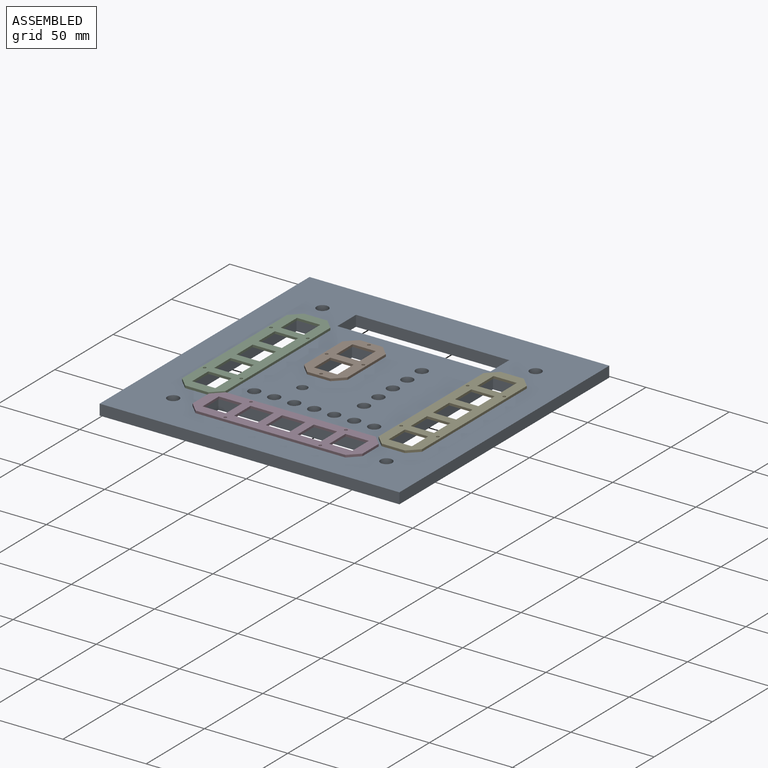
[diagram: assembled view]
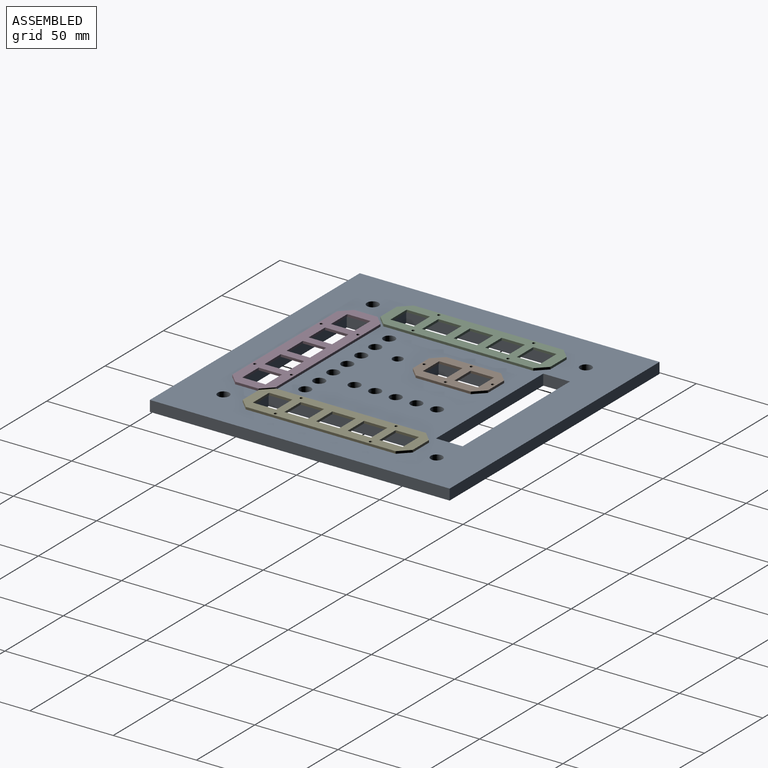
[diagram: assembled view, second angle]
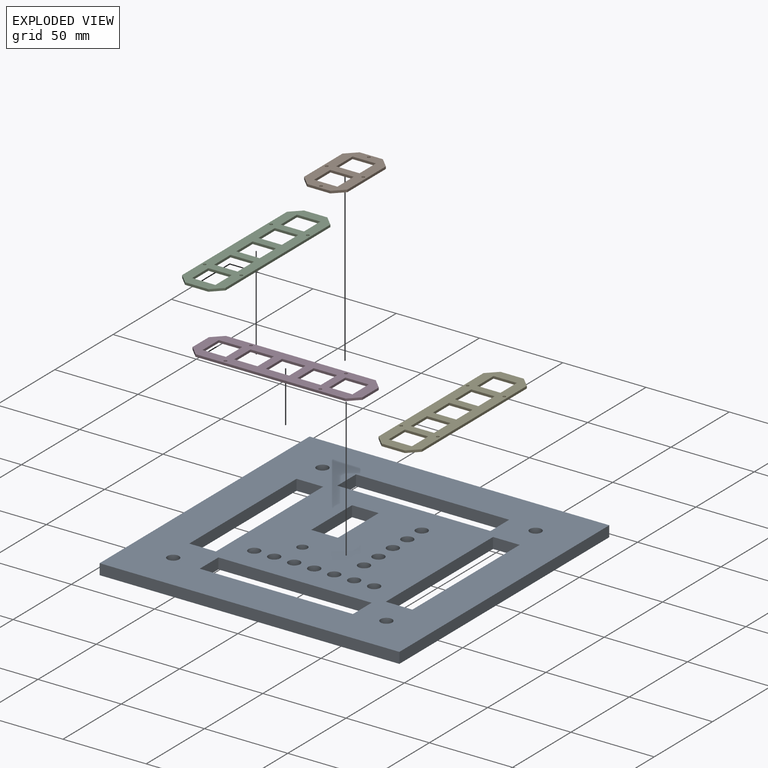
[diagram: exploded view]
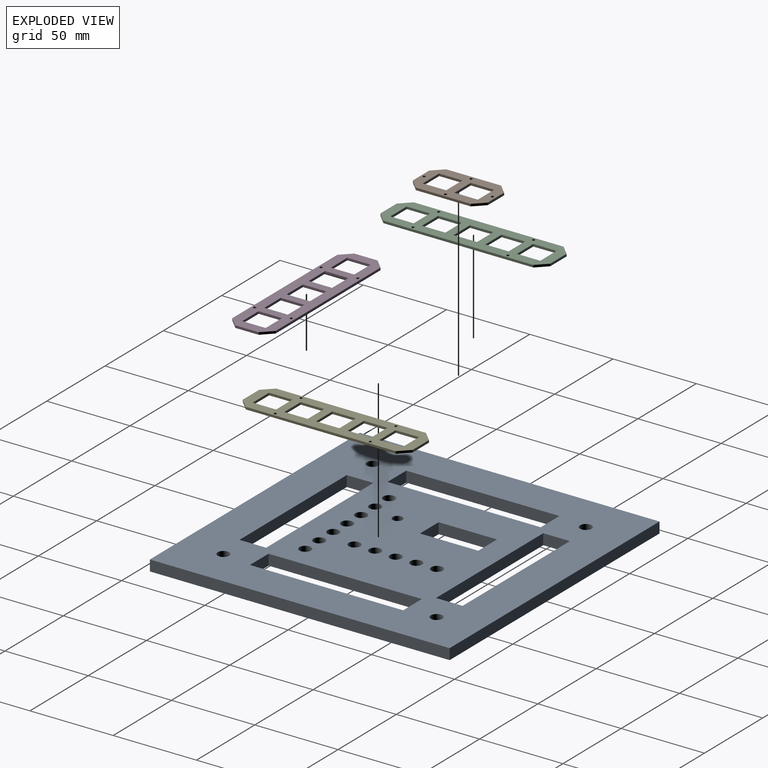
[diagram: exploded view, second angle]
FCSTD DOCUMENT  (FreeCAD 0.19R24267 +99 (Git))
Label: Multi-MFD
License: All rights reserved
LicenseURL: http://en.wikipedia.org/wiki/All_rights_reserved
objects: TechDraw::DrawViewDimension×17, Sketcher::SketchObject×5, TechDraw::DrawViewPart×4, PartDesign::FeatureBase×3, PartDesign::Pad×3, PartDesign::Body×3, App::Link×3, PartDesign::CoordinateSystem×2, PartDesign::Pocket×2, TechDraw::DrawSVGTemplate×2, TechDraw::DrawPage×2, PartDesign::Plane×1, PartDesign::PolarPattern×1, App::DocumentObjectGroup×1
note: 25 computed .brp shape members not serialized (recipe doc carries the construction recipe); baked Part::Feature solids carry a one-line shape summary decoded from their .brp

FEATURE [PartDesign::CoordinateSystem] LCS_0001
  AttacherType = Attacher::AttachEngine3D
  MapMode = 2
  Support = -> [X_Axis002]
FEATURE [PartDesign::CoordinateSystem] LCS_0003
  AttacherType = Attacher::AttachEngine3D
  MapMode = 2
  Support = -> [X_Axis004]
FEATURE [PartDesign::Plane] DatumPlane001
  Length = 230
  MapMode = 1
  ResizeMode = 1
  Width = 230
FEATURE [Sketcher::SketchObject] Sketch  label="BaseSketch"
  FullyConstrained = true
  MapMode = 5
  Support = -> [DatumPlane001]
  sketch-geometry (8):
    g0: LineSegment StartX=-90 StartY=90 StartZ=0 EndX=90 EndY=90 EndZ=0
    g1: LineSegment StartX=90 StartY=90 StartZ=0 EndX=90 EndY=-90 EndZ=0
    g2: LineSegment StartX=90 StartY=-90 StartZ=0 EndX=-90 EndY=-90 EndZ=0
    g3: LineSegment StartX=-90 StartY=-90 StartZ=0 EndX=-90 EndY=90 EndZ=0
    g4: LineSegment StartX=-77.8 StartY=77.8 StartZ=0 EndX=77.8 EndY=77.8 EndZ=0
    g5: LineSegment StartX=77.8 StartY=77.8 StartZ=0 EndX=77.8 EndY=-77.8 EndZ=0
    g6: LineSegment StartX=77.8 StartY=-77.8 StartZ=0 EndX=-77.8 EndY=-77.8 EndZ=0
    g7: LineSegment StartX=-77.8 StartY=-77.8 StartZ=0 EndX=-77.8 EndY=77.8 EndZ=0
  constraints (23):
    c: Coincident(g0,g1)
    c: Coincident(g1,g2)
    c: Coincident(g2,g3)
    c: Coincident(g3,g0)
    c: Horizontal(g0)
    c: Horizontal(g2)
    c: Vertical(g1)
    c: Vertical(g3)
    c: DistanceX(g0,g0) = 180
    c: DistanceY(g1,g1) = 180
    c: Symmetric(g0,g1,g-1)
    c: Coincident(g4,g5)
    c: Coincident(g5,g6)
    c: Coincident(g6,g7)
    c: Coincident(g7,g4)
    c: Horizontal(g4)
    c: Horizontal(g6)
    c: Vertical(g5)
    c: Vertical(g7)
    c: DistanceY(g4,g0) = 12.2
    c: DistanceX(g0,g4) = 12.2
    c: DistanceX(g5,g1) = 12.2
    c: DistanceY(g1,g5) = 12.2
FEATURE [Sketcher::SketchObject] Sketch001  label="ButtonPlateSketch"
  FullyConstrained = true
  MapMode = 5
  Support = -> [DatumPlane001]
  sketch-geometry (63):
    g0: LineSegment StartX=-45 StartY=72 StartZ=0 EndX=45 EndY=72 EndZ=0
    g1: LineSegment StartX=51 StartY=66 StartZ=0 EndX=51 EndY=52 EndZ=0
    g2: LineSegment StartX=45 StartY=46 StartZ=0 EndX=-45 EndY=46 EndZ=0
    g3: LineSegment StartX=-51 StartY=52 StartZ=0 EndX=-51 EndY=66 EndZ=0
    g4: LineSegment StartX=-51 StartY=66 StartZ=0 EndX=-45 EndY=66 EndZ=0
    g5: LineSegment StartX=-45 StartY=66 StartZ=0 EndX=-31 EndY=66 EndZ=0
    g6: LineSegment StartX=-31 StartY=66 StartZ=0 EndX=-26 EndY=66 EndZ=0
    g7: LineSegment StartX=-26 StartY=66 StartZ=0 EndX=-12 EndY=66 EndZ=0
    g8: LineSegment StartX=-12 StartY=66 StartZ=0 EndX=-7 EndY=66 EndZ=0
    g9: LineSegment StartX=-7 StartY=66 StartZ=0 EndX=7 EndY=66 EndZ=0
    g10: LineSegment StartX=7 StartY=66 StartZ=0 EndX=12 EndY=66 EndZ=0
    g11: LineSegment StartX=12 StartY=66 StartZ=0 EndX=26 EndY=66 EndZ=0
    g12: LineSegment StartX=26 StartY=66 StartZ=0 EndX=31 EndY=66 EndZ=0
    g13: LineSegment StartX=31 StartY=66 StartZ=0 EndX=45 EndY=66 EndZ=0
    g14: LineSegment StartX=45 StartY=66 StartZ=0 EndX=51 EndY=66 EndZ=0
    g15: LineSegment StartX=-51 StartY=52 StartZ=0 EndX=-45 EndY=52 EndZ=0
    g16: LineSegment StartX=-45 StartY=52 StartZ=0 EndX=-31 EndY=52 EndZ=0
    g17: LineSegment StartX=-31 StartY=52 StartZ=0 EndX=-26 EndY=52 EndZ=0
    g18: LineSegment StartX=-26 StartY=52 StartZ=0 EndX=-12 EndY=52 EndZ=0
    g19: LineSegment StartX=-12 StartY=52 StartZ=0 EndX=-7 EndY=52 EndZ=0
    g20: LineSegment StartX=-7 StartY=52 StartZ=0 EndX=7 EndY=52 EndZ=0
    g21: LineSegment StartX=7 StartY=52 StartZ=0 EndX=12 EndY=52 EndZ=0
    g22: LineSegment StartX=12 StartY=52 StartZ=0 EndX=26 EndY=52 EndZ=0
    g23: LineSegment StartX=26 StartY=52 StartZ=0 EndX=31 EndY=52 EndZ=0
    g24: LineSegment StartX=31 StartY=52 StartZ=0 EndX=45 EndY=52 EndZ=0
    g25: LineSegment StartX=45 StartY=52 StartZ=0 EndX=51 EndY=52 EndZ=0
    g26: LineSegment StartX=-45 StartY=72 StartZ=0 EndX=-45 EndY=66 EndZ=0
    g27: LineSegment StartX=-45 StartY=52 StartZ=0 EndX=-45 EndY=46 EndZ=0
    g28: LineSegment StartX=45 StartY=52 StartZ=0 EndX=45 EndY=46 EndZ=0
    g29: LineSegment StartX=45 StartY=66 StartZ=0 EndX=45 EndY=72 EndZ=0
    g30: LineSegment StartX=-45 StartY=66 StartZ=0 EndX=-31 EndY=66 EndZ=0
    g31: LineSegment StartX=-31 StartY=66 StartZ=0 EndX=-31 EndY=52 EndZ=0
    g32: LineSegment StartX=-31 StartY=52 StartZ=0 EndX=-45 EndY=52 EndZ=0
    g33: LineSegment StartX=-45 StartY=52 StartZ=0 EndX=-45 EndY=66 EndZ=0
    g34: LineSegment StartX=-26 StartY=66 StartZ=0 EndX=-12 EndY=66 EndZ=0
    g35: LineSegment StartX=-12 StartY=66 StartZ=0 EndX=-12 EndY=52 EndZ=0
    g36: LineSegment StartX=-12 StartY=52 StartZ=0 EndX=-26 EndY=52 EndZ=0
    g37: LineSegment StartX=-26 StartY=52 StartZ=0 EndX=-26 EndY=66 EndZ=0
    g38: LineSegment StartX=-7 StartY=66 StartZ=0 EndX=7 EndY=66 EndZ=0
    g39: LineSegment StartX=7 StartY=66 StartZ=0 EndX=7 EndY=52 EndZ=0
    g40: LineSegment StartX=7 StartY=52 StartZ=0 EndX=-7 EndY=52 EndZ=0
    g41: LineSegment StartX=-7 StartY=52 StartZ=0 EndX=-7 EndY=66 EndZ=0
    g42: LineSegment StartX=12 StartY=66 StartZ=0 EndX=26 EndY=66 EndZ=0
    g43: LineSegment StartX=26 StartY=66 StartZ=0 EndX=26 EndY=52 EndZ=0
    g44: LineSegment StartX=26 StartY=52 StartZ=0 EndX=12 EndY=52 EndZ=0
    g45: LineSegment StartX=12 StartY=52 StartZ=0 EndX=12 EndY=66 EndZ=0
    g46: LineSegment StartX=31 StartY=66 StartZ=0 EndX=45 EndY=66 EndZ=0
    g47: LineSegment StartX=45 StartY=66 StartZ=0 EndX=45 EndY=52 EndZ=0
    g48: LineSegment StartX=45 StartY=52 StartZ=0 EndX=31 EndY=52 EndZ=0
    g49: LineSegment StartX=31 StartY=52 StartZ=0 EndX=31 EndY=66 EndZ=0
    g50: LineSegment StartX=-45 StartY=72 StartZ=0 EndX=-51 EndY=66 EndZ=0
    g51: LineSegment StartX=-51 StartY=52 StartZ=0 EndX=-45 EndY=46 EndZ=0
    g52: LineSegment StartX=45 StartY=46 StartZ=0 EndX=51 EndY=52 EndZ=0
    g53: LineSegment StartX=51 StartY=66 StartZ=0 EndX=45 EndY=72 EndZ=0
    g54: Circle CenterX=-28.5 CenterY=48 CenterZ=0 NormalX=0 NormalY=0 NormalZ=1 AngleXU=0 Radius=0.9
    g55: Circle CenterX=-28.5 CenterY=70 CenterZ=0 NormalX=0 NormalY=0 NormalZ=1 AngleXU=0 Radius=0.9
    g56: Circle CenterX=28.5 CenterY=70 CenterZ=0 NormalX=0 NormalY=0 NormalZ=1 AngleXU=0 Radius=0.9
    g57: Circle CenterX=28.5 CenterY=48 CenterZ=0 NormalX=0 NormalY=0 NormalZ=1 AngleXU=0 Radius=0.9
    g58: LineSegment StartX=-45 StartY=48 StartZ=0 EndX=45 EndY=48 EndZ=0
    g59: LineSegment StartX=-45 StartY=70 StartZ=0 EndX=45 EndY=70 EndZ=0
    g60: LineSegment StartX=-28.5 StartY=72 StartZ=0 EndX=-28.5 EndY=46 EndZ=0
    g61: LineSegment StartX=28.5 StartY=72 StartZ=0 EndX=28.5 EndY=46 EndZ=0
    g62: LineSegment StartX=38 StartY=66 StartZ=0 EndX=38 EndY=52 EndZ=0
  constraints (174):
    c: Horizontal(g0)
    c: Vertical(g1)
    c: Vertical(g3)
    c: Horizontal(g4)
    c: Coincident(g4,g5)
    c: Horizontal(g5)
    c: Coincident(g5,g6)
    c: Horizontal(g6)
    c: Coincident(g6,g7)
    c: Horizontal(g7)
    c: Coincident(g7,g8)
    c: Horizontal(g8)
    c: Coincident(g8,g9)
    c: Horizontal(g9)
    c: Coincident(g9,g10)
    c: Horizontal(g10)
    c: Coincident(g10,g11)
    c: Horizontal(g11)
    c: Coincident(g11,g12)
    c: Horizontal(g12)
    c: Coincident(g12,g13)
    c: Horizontal(g13)
    c: Coincident(g13,g14)
    c: Horizontal(g14)
    c: Equal(g5,g7)
    c: Equal(g7,g9)
    c: Equal(g9,g11)
    c: Equal(g11,g13)
    c: Equal(g6,g8)
    c: Equal(g8,g10)
    c: Equal(g10,g12)
    c: Horizontal(g15)
    c: Coincident(g15,g16)
    c: Horizontal(g16)
    c: Coincident(g16,g17)
    c: Horizontal(g17)
    c: Coincident(g17,g18)
    c: Horizontal(g18)
    c: Coincident(g18,g19)
    c: Horizontal(g19)
    c: Coincident(g19,g20)
    c: Horizontal(g20)
    c: Coincident(g20,g21)
    c: Horizontal(g21)
    c: Coincident(g21,g22)
    c: Horizontal(g22)
    c: Coincident(g22,g23)
    c: Horizontal(g23)
    c: Coincident(g23,g24)
    c: Horizontal(g24)
    c: Coincident(g24,g25)
    c: Horizontal(g25)
    c: Equal(g16,g18)
    c: Equal(g18,g20)
    c: Equal(g20,g22)
    c: Equal(g22,g24)
    c: Equal(g17,g19)
    c: Equal(g19,g21)
    c: Equal(g21,g23)
    c: Equal(g6,g17) = 5
    c: Equal(g5,g16) = 14
    c: Vertical(g26)
    c: Vertical(g27)
    c: Coincident(g26,g4)
    c: Coincident(g27,g15)
    c: Coincident(g28,g24)
    c: Vertical(g28)
    c: Coincident(g29,g13)
    c: Vertical(g29)
    c: DistanceX(g6,g6) = 5
    c: DistanceY(g15,g4) = 14
    c: DistanceY(g29,g29) = 6
    c: Equal(g4,g26)
    c: Equal(g25,g28)
    c: Equal(g14,g29)
    c: Equal(g15,g4)
    c: Coincident(g30,g31)
    c: Coincident(g31,g32)
    c: Coincident(g32,g33)
    c: Coincident(g33,g30)
    c: Horizontal(g30)
    c: Horizontal(g32)
    c: Vertical(g31)
    c: Vertical(g33)
    c: Coincident(g30,g4)
    c: Coincident(g31,g16)
    c: Coincident(g34,g35)
    c: Coincident(g35,g36)
    c: Coincident(g36,g37)
    c: Coincident(g37,g34)
    c: Horizontal(g34)
    c: Horizontal(g36)
    c: Vertical(g35)
    c: Vertical(g37)
    c: Coincident(g34,g6)
    c: Coincident(g35,g18)
    c: Coincident(g38,g39)
    c: Coincident(g39,g40)
    c: Coincident(g40,g41)
    c: Coincident(g41,g38)
    c: Horizontal(g38)
    c: Horizontal(g40)
    c: Vertical(g39)
    c: Vertical(g41)
    c: Coincident(g38,g8)
    c: Coincident(g39,g20)
    c: Coincident(g42,g43)
    c: Coincident(g43,g44)
    c: Coincident(g44,g45)
    c: Coincident(g45,g42)
    c: Horizontal(g42)
    c: Horizontal(g44)
    c: Vertical(g43)
    c: Vertical(g45)
    c: Coincident(g42,g10)
    c: Coincident(g43,g22)
    c: Coincident(g46,g47)
    c: Coincident(g47,g48)
    c: Coincident(g48,g49)
    c: Coincident(g49,g46)
    c: Horizontal(g46)
    c: Horizontal(g48)
    c: Vertical(g47)
    c: Vertical(g49)
    c: Coincident(g46,g12)
    c: Coincident(g47,g24)
    c: Equal(g32,g33)
    c: Coincident(g1,g25)
    c: Coincident(g2,g28)
    c: Coincident(g1,g14)
    c: Coincident(g0,g29)
    c: Coincident(g0,g26)
    c: Coincident(g3,g4)
    c: Coincident(g3,g15)
    c: Coincident(g2,g27)
    c: Coincident(g50,g0)
    c: Coincident(g51,g3)
    c: Coincident(g51,g2)
    c: Coincident(g52,g2)
    c: Coincident(g52,g1)
    c: Coincident(g53,g1)
    c: Coincident(g53,g0)
    c: Coincident(g50,g3)
    c: Symmetric(g2,g2,g-2)
    c: DistanceY(g-1,g0) = 72
    c: PointOnObject(g58,g27)
    c: PointOnObject(g58,g28)
    c: Horizontal(g58)
    c: PointOnObject(g59,g26)
    c: PointOnObject(g59,g29)
    c: Horizontal(g59)
    c: PointOnObject(g55,g59)
    c: PointOnObject(g56,g59)
    c: PointOnObject(g54,g58)
    c: DistanceY(g58,g47) = 4
    c: Diameter(g54) = 1.8
    c: Diameter(g57) = 1.8
    c: Diameter(g56) = 1.8
    c: Diameter(g55) = 1.8
    c: DistanceY(g46,g59) = 4
    c: Symmetric(g54,g57,g-2)
    c: PointOnObject(g60,g0)
    c: PointOnObject(g60,g2)
    c: Vertical(g60)
    c: PointOnObject(g61,g0)
    c: Vertical(g61)
    c: PointOnObject(g57,g61)
    c: PointOnObject(g55,g60)
    c: PointOnObject(g56,g61)
    c: Symmetric(g60,g61,g-2)
    c: DistanceX(g60,g-1) = 28.5
    c: PointOnObject(g62,g46)
    c: PointOnObject(g62,g48)
    c: Symmetric(g46,g46,g62)
FEATURE [Sketcher::SketchObject] Sketch002
  FullyConstrained = true
  MapMode = 5
  Support = -> [DatumPlane001]
  sketch-geometry (6):
    g0: LineSegment StartX=-46 StartY=67 StartZ=0 EndX=46 EndY=67 EndZ=0
    g1: LineSegment StartX=46 StartY=67 StartZ=0 EndX=46 EndY=51 EndZ=0
    g2: LineSegment StartX=46 StartY=51 StartZ=0 EndX=-46 EndY=51 EndZ=0
    g3: LineSegment StartX=-46 StartY=51 StartZ=0 EndX=-46 EndY=67 EndZ=0
    g4: LineSegment StartX=46 StartY=64 StartZ=0 EndX=64 EndY=64 EndZ=0
    g5: Circle CenterX=64 CenterY=64 CenterZ=0 NormalX=0 NormalY=0 NormalZ=1 AngleXU=0 Radius=3.5
  constraints (17):
    c: Coincident(g0,g1)
    c: Coincident(g1,g2)
    c: Coincident(g2,g3)
    c: Coincident(g3,g0)
    c: Horizontal(g0)
    c: Vertical(g1)
    c: Vertical(g3)
    c: DistanceY(g1,g1) = 16
    c: DistanceX(g0,g0) = 92
    c: Symmetric(g1,g2,g-2)
    c: DistanceY(g-1,g0) = 67
    c: PointOnObject(g4,g1)
    c: DistanceX(g4,g4) = 18
    c: Coincident(g5,g4)
    c: Diameter(g5) = 7
    c: DistanceY(g1,g4) = 13
    c: Horizontal(g4)
FEATURE [Sketcher::SketchObject] Sketch003
  FullyConstrained = true
  MapMode = 5
  Support = -> [DatumPlane001]
  sketch-geometry (36):
    g0: LineSegment StartX=-26 StartY=41.5 StartZ=0 EndX=-26 EndY=35.5 EndZ=0
    g1: LineSegment StartX=-26 StartY=35.5 StartZ=0 EndX=-26 EndY=21.5 EndZ=0
    g2: LineSegment StartX=-26 StartY=21.5 StartZ=0 EndX=-26 EndY=16.5 EndZ=0
    g3: LineSegment StartX=-26 StartY=16.5 StartZ=0 EndX=-26 EndY=2.5 EndZ=0
    g4: LineSegment StartX=-26 StartY=2.5 StartZ=0 EndX=-26 EndY=-3.5 EndZ=0
    g5: LineSegment StartX=-12 StartY=41.5 StartZ=0 EndX=-12 EndY=35.5 EndZ=0
    g6: LineSegment StartX=-12 StartY=35.5 StartZ=0 EndX=-12 EndY=21.5 EndZ=0
    g7: LineSegment StartX=-12 StartY=21.5 StartZ=0 EndX=-12 EndY=16.5 EndZ=0
    g8: LineSegment StartX=-12 StartY=16.5 StartZ=0 EndX=-12 EndY=2.5 EndZ=0
    g9: LineSegment StartX=-12 StartY=2.5 StartZ=0 EndX=-12 EndY=-3.5 EndZ=0
    g10: LineSegment StartX=-26 StartY=41.5 StartZ=0 EndX=-12 EndY=41.5 EndZ=0
    g11: LineSegment StartX=-6 StartY=35.5 StartZ=0 EndX=-6 EndY=2.5 EndZ=0
    g12: LineSegment StartX=-12 StartY=-3.5 StartZ=0 EndX=-26 EndY=-3.5 EndZ=0
    g13: LineSegment StartX=-32 StartY=2.5 StartZ=0 EndX=-32 EndY=35.5 EndZ=0
    g14: LineSegment StartX=-26 StartY=35.5 StartZ=0 EndX=-32 EndY=35.5 EndZ=0
    g15: LineSegment StartX=-12 StartY=35.5 StartZ=0 EndX=-6 EndY=35.5 EndZ=0
    g16: LineSegment StartX=-12 StartY=2.5 StartZ=0 EndX=-6 EndY=2.5 EndZ=0
    g17: LineSegment StartX=-26 StartY=2.5 StartZ=0 EndX=-32 EndY=2.5 EndZ=0
    g18: LineSegment StartX=-26 StartY=41.5 StartZ=0 EndX=-32 EndY=35.5 EndZ=0
    g19: LineSegment StartX=-12 StartY=41.5 StartZ=0 EndX=-6 EndY=35.5 EndZ=0
    g20: LineSegment StartX=-32 StartY=2.5 StartZ=0 EndX=-26 EndY=-3.5 EndZ=0
    g21: LineSegment StartX=-12 StartY=-3.5 StartZ=0 EndX=-6 EndY=2.5 EndZ=0
    g22: LineSegment StartX=-12 StartY=16.5 StartZ=0 EndX=-26 EndY=16.5 EndZ=0
    g23: LineSegment StartX=-26 StartY=16.5 StartZ=0 EndX=-26 EndY=2.5 EndZ=0
    g24: LineSegment StartX=-26 StartY=2.5 StartZ=0 EndX=-12 EndY=2.5 EndZ=0
    g25: LineSegment StartX=-12 StartY=2.5 StartZ=0 EndX=-12 EndY=16.5 EndZ=0
    g26: LineSegment StartX=-26 StartY=21.5 StartZ=0 EndX=-12 EndY=21.5 EndZ=0
    g27: LineSegment StartX=-12 StartY=21.5 StartZ=0 EndX=-12 EndY=35.5 EndZ=0
    g28: LineSegment StartX=-12 StartY=35.5 StartZ=0 EndX=-26 EndY=35.5 EndZ=0
    g29: LineSegment StartX=-26 StartY=35.5 StartZ=0 EndX=-26 EndY=21.5 EndZ=0
    g30: Circle CenterX=-19 CenterY=-1.5 CenterZ=0 NormalX=0 NormalY=0 NormalZ=1 AngleXU=0 Radius=0.9
    g31: Circle CenterX=-19 CenterY=39.5 CenterZ=0 NormalX=0 NormalY=0 NormalZ=1 AngleXU=0 Radius=0.9
    g32: Circle CenterX=-30 CenterY=19 CenterZ=0 NormalX=0 NormalY=0 NormalZ=1 AngleXU=0 Radius=0.9
    g33: Circle CenterX=-8 CenterY=19 CenterZ=0 NormalX=0 NormalY=0 NormalZ=1 AngleXU=0 Radius=0.9
    g34: LineSegment StartX=-19 StartY=41.5 StartZ=0 EndX=-19 EndY=-3.5 EndZ=0
    g35: LineSegment StartX=-32 StartY=19 StartZ=0 EndX=-6 EndY=19 EndZ=0
  constraints (98):
    c: Vertical(g0)
    c: Coincident(g0,g1)
    c: Vertical(g1)
    c: Coincident(g1,g2)
    c: Vertical(g2)
    c: Coincident(g2,g3)
    c: Vertical(g3)
    c: Coincident(g3,g4)
    c: Vertical(g4)
    c: Vertical(g5)
    c: Coincident(g5,g6)
    c: Vertical(g6)
    c: Coincident(g6,g7)
    c: Vertical(g7)
    c: Coincident(g7,g8)
    c: Vertical(g8)
    c: Coincident(g9,g8)
    c: Vertical(g9)
    c: Horizontal(g10)
    c: Horizontal(g12)
    c: Vertical(g11)
    c: Vertical(g13)
    c: Equal(g1,g6)
    c: Equal(g6,g8)
    c: Equal(g8,g3)
    c: Equal(g2,g7)
    c: Equal(g4,g9)
    c: Equal(g9,g5)
    c: Coincident(g14,g0)
    c: Horizontal(g14)
    c: Coincident(g15,g5)
    c: Horizontal(g15)
    c: Coincident(g16,g8)
    c: Horizontal(g16)
    c: Coincident(g17,g3)
    c: Horizontal(g17)
    c: Equal(g15,g14)
    c: Equal(g14,g0)
    c: DistanceX(g14,g14) = 6
    c: DistanceY(g1,g1) = 14
    c: Coincident(g10,g0)
    c: Coincident(g13,g14)
    c: Coincident(g18,g10)
    c: Coincident(g18,g13)
    c: Coincident(g10,g5)
    c: Coincident(g19,g10)
    c: Coincident(g19,g11)
    c: Coincident(g11,g16)
    c: Coincident(g12,g9)
    c: Coincident(g12,g4)
    c: Coincident(g13,g17)
    c: Coincident(g20,g13)
    c: Coincident(g20,g12)
    c: Coincident(g21,g12)
    c: Coincident(g21,g11)
    c: Coincident(g22,g23)
    c: Coincident(g23,g24)
    c: Coincident(g24,g25)
    c: Coincident(g25,g22)
    c: Horizontal(g22)
    c: Horizontal(g24)
    c: Vertical(g23)
    c: Vertical(g25)
    c: Coincident(g22,g7)
    c: Coincident(g23,g3)
    c: Coincident(g26,g27)
    c: Coincident(g27,g28)
    c: Coincident(g28,g29)
    c: Coincident(g29,g26)
    c: Horizontal(g26)
    c: Horizontal(g28)
    c: Vertical(g27)
    c: Vertical(g29)
    c: Coincident(g26,g1)
    c: Coincident(g27,g5)
    c: DistanceY(g7,g7) = 5
    c: DistanceX(g10,g10) = 14
    c: DistanceX(g11,g-1) = 6
    c: Diameter(g31) = 1.8
    c: Diameter(g32) = 1.8
    c: Diameter(g30) = 1.8
    c: Diameter(g33) = 1.8
    c: PointOnObject(g34,g10)
    c: PointOnObject(g35,g13)
    c: PointOnObject(g35,g11)
    c: Symmetric(g13,g13,g35)
    c: Symmetric(g10,g10,g34)
    c: PointOnObject(g33,g35)
    c: PointOnObject(g32,g35)
    c: PointOnObject(g31,g34)
    c: PointOnObject(g30,g34)
    c: DistanceY(g34,g30) = 2
    c: DistanceX(g33,g35) = 2
    c: DistanceX(g35,g32) = 2
    c: DistanceY(g31,g34) = 2
    c: Coincident(g11,g15)
    c: PointOnObject(g34,g12)
    c: DistanceY(g-1,g35) = 19
FEATURE [Sketcher::SketchObject] Sketch004
  FullyConstrained = true
  MapMode = 5
  Support = -> [DatumPlane001]
  sketch-geometry (29):
    g0: LineSegment StartX=-27 StartY=36.5 StartZ=0 EndX=-11 EndY=36.5 EndZ=0
    g1: LineSegment StartX=-11 StartY=36.5 StartZ=0 EndX=-11 EndY=1.5 EndZ=0
    g2: LineSegment StartX=-11 StartY=1.5 StartZ=0 EndX=-27 EndY=1.5 EndZ=0
    g3: LineSegment StartX=-27 StartY=1.5 StartZ=0 EndX=-27 EndY=36.5 EndZ=0
    g4: LineSegment StartX=-36 StartY=-34.5 StartZ=0 EndX=-24 EndY=-34.5 EndZ=0
    g5: LineSegment StartX=-24 StartY=-34.5 StartZ=0 EndX=-12 EndY=-34.5 EndZ=0
    g6: LineSegment StartX=-12 StartY=-34.5 StartZ=0 EndX=0 EndY=-34.5 EndZ=0
    g7: LineSegment StartX=0 StartY=-34.5 StartZ=0 EndX=12 EndY=-34.5 EndZ=0
    g8: LineSegment StartX=12 StartY=-34.5 StartZ=0 EndX=24 EndY=-34.5 EndZ=0
    g9: LineSegment StartX=24 StartY=-34.5 StartZ=0 EndX=36 EndY=-34.5 EndZ=0
    g10: Circle CenterX=-36 CenterY=-34.5 CenterZ=0 NormalX=0 NormalY=0 NormalZ=1 AngleXU=0 Radius=3.5
    g11: Circle CenterX=-24 CenterY=-34.5 CenterZ=0 NormalX=0 NormalY=0 NormalZ=1 AngleXU=0 Radius=3.5
    g12: Circle CenterX=-12 CenterY=-34.5 CenterZ=0 NormalX=0 NormalY=0 NormalZ=1 AngleXU=0 Radius=3.5
    g13: Circle CenterX=0 CenterY=-34.5 CenterZ=0 NormalX=0 NormalY=0 NormalZ=1 AngleXU=0 Radius=3.5
    g14: Circle CenterX=12 CenterY=-34.5 CenterZ=0 NormalX=0 NormalY=0 NormalZ=1 AngleXU=0 Radius=3.5
    g15: Circle CenterX=24 CenterY=-34.5 CenterZ=0 NormalX=0 NormalY=0 NormalZ=1 AngleXU=0 Radius=3.5
    g16: Circle CenterX=36 CenterY=-34.5 CenterZ=0 NormalX=0 NormalY=0 NormalZ=1 AngleXU=0 Radius=3.5
    g17: LineSegment StartX=18 StartY=32 StartZ=0 EndX=18 EndY=19.625 EndZ=0
    g18: LineSegment StartX=18 StartY=19.625 StartZ=0 EndX=18 EndY=7.25 EndZ=0
    g19: LineSegment StartX=18 StartY=7.25 StartZ=0 EndX=18 EndY=-5.125 EndZ=0
    g20: LineSegment StartX=18 StartY=-5.125 StartZ=0 EndX=18 EndY=-17.5 EndZ=0
    g21: Circle CenterX=18 CenterY=-17.5 CenterZ=0 NormalX=0 NormalY=0 NormalZ=1 AngleXU=0 Radius=3.5
    g22: Circle CenterX=18 CenterY=-5.125 CenterZ=0 NormalX=0 NormalY=0 NormalZ=1 AngleXU=0 Radius=3.5
    g23: Circle CenterX=18 CenterY=7.25 CenterZ=0 NormalX=0 NormalY=0 NormalZ=1 AngleXU=0 Radius=3.5
    g24: Circle CenterX=18 CenterY=19.625 CenterZ=0 NormalX=0 NormalY=0 NormalZ=1 AngleXU=0 Radius=3.5
    g25: Circle CenterX=18 CenterY=32 CenterZ=0 NormalX=0 NormalY=0 NormalZ=1 AngleXU=0 Radius=3.5
    g26: LineSegment StartX=-19 StartY=1.5 StartZ=0 EndX=-19 EndY=-17.5 EndZ=0
    g27: Circle CenterX=-19 CenterY=-17.5 CenterZ=0 NormalX=0 NormalY=0 NormalZ=1 AngleXU=0 Radius=3
    g28: LineSegment StartX=-27 StartY=32 StartZ=0 EndX=-11 EndY=32 EndZ=0
  constraints (76):
    c: Coincident(g0,g1)
    c: Coincident(g1,g2)
    c: Coincident(g2,g3)
    c: Coincident(g3,g0)
    c: Horizontal(g0)
    c: Horizontal(g2)
    c: Vertical(g1)
    c: Vertical(g3)
    c: DistanceX(g0,g0) = 16
    c: DistanceY(g1,g1) = 35
    c: Horizontal(g4)
    c: Coincident(g5,g4)
    c: Horizontal(g5)
    c: Coincident(g6,g5)
    c: Horizontal(g6)
    c: Coincident(g7,g6)
    c: Horizontal(g7)
    c: Coincident(g8,g7)
    c: Horizontal(g8)
    c: Coincident(g9,g8)
    c: Horizontal(g9)
    c: Equal(g4,g5)
    c: Equal(g5,g6)
    c: Equal(g6,g7)
    c: Equal(g7,g8)
    c: Equal(g8,g9)
    c: DistanceX(g4,g4) = 12
    c: Diameter(g10) = 7
    c: Coincident(g11,g4)
    c: Coincident(g12,g5)
    c: Coincident(g13,g6)
    c: Coincident(g14,g7)
    c: Coincident(g15,g8)
    c: Coincident(g16,g9)
    c: Diameter(g11) = 7
    c: Diameter(g12) = 7
    c: Diameter(g13) = 7
    c: Diameter(g14) = 7
    c: Diameter(g15) = 7
    c: Diameter(g16) = 7
    c: PointOnObject(g6,g-2)
    c: Coincident(g4,g10)
    c: DistanceY(g6,g-1) = 34.5
    c: DistanceY(g-1,g0) = 36.5
    c: DistanceX(g0,g-1) = 11
    c: Vertical(g17)
    c: Coincident(g17,g18)
    c: Vertical(g18)
    c: Coincident(g18,g19)
    c: Vertical(g19)
    c: Coincident(g19,g20)
    c: Equal(g17,g18)
    c: Equal(g18,g19)
    c: Equal(g19,g20)
    c: Coincident(g21,g20)
    c: Coincident(g22,g19)
    c: Coincident(g23,g18)
    c: Coincident(g24,g17)
    c: Diameter(g25) = 7
    c: Diameter(g24) = 7
    c: Diameter(g23) = 7
    c: Diameter(g22) = 7
    c: Diameter(g21) = 7
    c: Coincident(g17,g25)
    c: PointOnObject(g26,g2)
    c: Symmetric(g2,g1,g26)
    c: Coincident(g27,g26)
    c: Diameter(g27) = 6
    c: Symmetric(g14,g15,g20)
    c: DistanceY(g26,g26) = 19
    c: Horizontal(g21,g26)
    c: PointOnObject(g28,g3)
    c: PointOnObject(g28,g1)
    c: DistanceY(g28,g0) = 4.5
    c: Horizontal(g28,g25)
    c: Horizontal(g28)
FEATURE [PartDesign::FeatureBase] BaseFeature
  BaseFeature = -> DatumPlane001
FEATURE [PartDesign::Pad] Pad  label="BaseSketchPad"
  BaseFeature = -> BaseFeature
  Direction = (0,0,-1)
  Length = 6.5
  Length2 = 100
  Profile = -> Sketch
  Type = 0
  UseCustomVector = true
FEATURE [PartDesign::Pocket] Pocket
  BaseFeature = -> Pad
  Length = 7
  Length2 = 100
  Profile = -> Sketch002
  Type = 1
FEATURE [PartDesign::PolarPattern] PolarPattern
  Angle = 360
  Axis = -> Sketch002 [N_Axis]
  BaseFeature = -> Pocket
  Occurrences = 4
  Originals = -> [Pocket]
FEATURE [PartDesign::FeatureBase] BaseFeature001
  BaseFeature = -> DatumPlane001
FEATURE [PartDesign::Pad] Pad001  label="FiveButtonPlatePad"
  BaseFeature = -> BaseFeature001
  Direction = (1,1,1)
  Length = 1.4
  Length2 = 100
  Profile = -> Sketch001
  Type = 0
FEATURE [PartDesign::Body] ButtonPlateBody
  BaseFeature = -> DatumPlane001
  Group = -> [BaseFeature001,LCS_0003,Sketch001,Pad001]
  Origin = -> Origin004
  Tip = -> Pad001
FEATURE [PartDesign::FeatureBase] BaseFeature002
  BaseFeature = -> DatumPlane001
FEATURE [PartDesign::Pad] Pad002  label="TwoButtonPlatePad"
  BaseFeature = -> BaseFeature002
  Direction = (1,1,1)
  Length = 1.4
  Length2 = 100
  Profile = -> Sketch003
  Type = 0
FEATURE [PartDesign::Body] Body  label="ArmingPlate"
  BaseFeature = -> DatumPlane001
  Group = -> [BaseFeature002,Sketch003,Pad002]
  Origin = -> Origin
  Tip = -> Pad002
FEATURE [TechDraw::DrawSVGTemplate] Template
  EditableTexts = Designed_by_Name=Designed by Name; Drawing_number=Drawing number; FC-Date=Date; FC-SC=Scale; FC-SH=Sheet; FC-Title=Title; Subtitle=Subtitle; Weight=Weight
  Height = 210
  Orientation = 1
  Width = 297
FEATURE [PartDesign::Pocket] Pocket001
  BaseFeature = -> PolarPattern
  Length = 5
  Length2 = 100
  Profile = -> Sketch004
  Type = 1
FEATURE [PartDesign::Body] Base  label="BasePad"
  BaseFeature = -> DatumPlane001
  Group = -> [BaseFeature,LCS_0001,Sketch,Pad,Sketch002,Pocket,PolarPattern,Sketch004,Pocket001]
  Origin = -> Origin002
  Tip = -> Pocket001
FEATURE [App::Link] Link  label="ButtonPlateBody001"
  LinkPlacement = pos=(0,0,0) rot=(0,0,1;1.5708rad)
  LinkedObject = -> ButtonPlateBody
  Placement = pos=(0,0,0) rot=(0,0,1;1.5708rad)
FEATURE [App::Link] Link001  label="ButtonPlateBody002"
  LinkPlacement = pos=(0,0,0) rot=(0,0,1;3.14159rad)
  LinkedObject = -> ButtonPlateBody
  Placement = pos=(0,0,0) rot=(0,0,1;3.14159rad)
FEATURE [App::Link] Link002  label="ButtonPlateBody003"
  LinkPlacement = pos=(0,0,0) rot=(0,0,1;4.71239rad)
  LinkedObject = -> ButtonPlateBody
  Placement = pos=(0,0,0) rot=(0,0,1;4.71239rad)
FEATURE [App::DocumentObjectGroup] Parts
  Group = -> [Body,Base,ButtonPlateBody,Link,Link001,Link002]
FEATURE [TechDraw::DrawViewPart] View  label="BackSide"
  CoarseView = false
  Direction = (0,0,-1)
  Focus = 100
  HardHidden = false
  IsoCount = 0
  IsoHidden = false
  IsoVisible = false
  LockPosition = false
  Perspective = false
  Rotation = 0
  ScaleType = 0
  SeamHidden = false
  SeamVisible = true
  SmoothHidden = false
  SmoothVisible = true
  Source = -> [Base]
  X = 148.5
  XDirection = (1,0,0)
  Y = 105
FEATURE [TechDraw::DrawViewDimension] Dimension
  Arbitrary = false
  ArbitraryTolerances = false
  EqualTolerance = true
  FormatSpec = R%.2f
  FormatSpecOverTolerance = %+.2f
  FormatSpecUnderTolerance = %+.2f
  Inverted = false
  LockPosition = false
  MeasureType = 1
  OverTolerance = 0
  References2D = -> [View]
  Rotation = 0
  ScaleType = 0
  TheoreticalExact = false
  Type = 4
  UnderTolerance = 0
  X = -79.4414
  Y = 69.6108
FEATURE [TechDraw::DrawViewDimension] Dimension001
  Arbitrary = false
  ArbitraryTolerances = false
  EqualTolerance = true
  FormatSpec = R%.2f
  FormatSpecOverTolerance = %+.2f
  FormatSpecUnderTolerance = %+.2f
  Inverted = false
  LockPosition = false
  MeasureType = 1
  OverTolerance = 0
  References2D = -> [View]
  Rotation = 0
  ScaleType = 0
  TheoreticalExact = false
  Type = 4
  UnderTolerance = 0
  X = 77.5816
  Y = 69.8765
FEATURE [TechDraw::DrawViewDimension] Dimension002
  Arbitrary = false
  ArbitraryTolerances = false
  EqualTolerance = true
  FormatSpec = R%.2f
  FormatSpecOverTolerance = %+.2f
  FormatSpecUnderTolerance = %+.2f
  Inverted = false
  LockPosition = false
  MeasureType = 1
  OverTolerance = 0
  References2D = -> [View]
  Rotation = 0
  ScaleType = 0
  TheoreticalExact = false
  Type = 4
  UnderTolerance = 0
  X = -29.4916
  Y = 47.5586
FEATURE [TechDraw::DrawViewDimension] Dimension003
  Arbitrary = false
  ArbitraryTolerances = false
  EqualTolerance = true
  FormatSpec = R%.2f
  FormatSpecOverTolerance = %+.2f
  FormatSpecUnderTolerance = %+.2f
  Inverted = false
  LockPosition = false
  MeasureType = 1
  OverTolerance = 0
  References2D = -> [View]
  Rotation = 0
  ScaleType = 0
  TheoreticalExact = false
  Type = 4
  UnderTolerance = 0
  X = -18.864
  Y = 46.7615
FEATURE [TechDraw::DrawViewDimension] Dimension004
  Arbitrary = false
  ArbitraryTolerances = false
  EqualTolerance = true
  FormatSpec = R%.2f
  FormatSpecOverTolerance = %+.2f
  FormatSpecUnderTolerance = %+.2f
  Inverted = false
  LockPosition = false
  MeasureType = 1
  OverTolerance = 0
  References2D = -> [View]
  Rotation = 0
  ScaleType = 0
  TheoreticalExact = false
  Type = 4
  UnderTolerance = 0
  X = -7.97071
  Y = 46.2301
FEATURE [TechDraw::DrawViewDimension] Dimension005
  Arbitrary = false
  ArbitraryTolerances = false
  EqualTolerance = true
  FormatSpec = R%.2f
  FormatSpecOverTolerance = %+.2f
  FormatSpecUnderTolerance = %+.2f
  Inverted = false
  LockPosition = false
  MeasureType = 1
  OverTolerance = 0
  References2D = -> [View]
  Rotation = 0
  ScaleType = 0
  TheoreticalExact = false
  Type = 4
  UnderTolerance = 0
  X = 3.98535
  Y = 45.9644
FEATURE [TechDraw::DrawViewDimension] Dimension006
  Arbitrary = false
  ArbitraryTolerances = false
  EqualTolerance = true
  FormatSpec = R%.2f
  FormatSpecOverTolerance = %+.2f
  FormatSpecUnderTolerance = %+.2f
  Inverted = false
  LockPosition = false
  MeasureType = 1
  OverTolerance = 0
  References2D = -> [View]
  Rotation = 0
  ScaleType = 0
  TheoreticalExact = false
  Type = 4
  UnderTolerance = 0
  X = 15.9414
  Y = 47.2929
FEATURE [TechDraw::DrawViewDimension] Dimension007
  Arbitrary = false
  ArbitraryTolerances = false
  EqualTolerance = true
  FormatSpec = R%.2f
  FormatSpecOverTolerance = %+.2f
  FormatSpecUnderTolerance = %+.2f
  Inverted = false
  LockPosition = false
  MeasureType = 1
  OverTolerance = 0
  References2D = -> [View]
  Rotation = 0
  ScaleType = 0
  TheoreticalExact = false
  Type = 4
  UnderTolerance = 0
  X = 27.3661
  Y = 46.2301
FEATURE [TechDraw::DrawViewDimension] Dimension008
  Arbitrary = false
  ArbitraryTolerances = false
  EqualTolerance = true
  FormatSpec = R%.2f
  FormatSpecOverTolerance = %+.2f
  FormatSpecUnderTolerance = %+.2f
  Inverted = false
  LockPosition = false
  MeasureType = 1
  OverTolerance = 0
  References2D = -> [View]
  Rotation = 0
  ScaleType = 0
  TheoreticalExact = false
  Type = 4
  UnderTolerance = 0
  X = 40.1192
  Y = 46.2301
FEATURE [TechDraw::DrawViewDimension] Dimension009
  Arbitrary = false
  ArbitraryTolerances = false
  EqualTolerance = true
  FormatSpec = R%.2f
  FormatSpecOverTolerance = %+.2f
  FormatSpecUnderTolerance = %+.2f
  Inverted = false
  LockPosition = false
  MeasureType = 1
  OverTolerance = 0
  References2D = -> [View]
  Rotation = 0
  ScaleType = 0
  TheoreticalExact = false
  Type = 4
  UnderTolerance = 0
  X = 30.8201
  Y = 23.3807
FEATURE [TechDraw::DrawViewDimension] Dimension010
  Arbitrary = false
  ArbitraryTolerances = false
  EqualTolerance = true
  FormatSpec = R%.2f
  FormatSpecOverTolerance = %+.2f
  FormatSpecUnderTolerance = %+.2f
  Inverted = false
  LockPosition = false
  MeasureType = 1
  OverTolerance = 0
  References2D = -> [View]
  Rotation = 0
  ScaleType = 0
  TheoreticalExact = false
  Type = 4
  UnderTolerance = 0
  X = -8.2364
  Y = 23.3807
FEATURE [TechDraw::DrawViewDimension] Dimension011
  Arbitrary = false
  ArbitraryTolerances = false
  EqualTolerance = true
  FormatSpec = R%.2f
  FormatSpecOverTolerance = %+.2f
  FormatSpecUnderTolerance = %+.2f
  Inverted = false
  LockPosition = false
  MeasureType = 1
  OverTolerance = 0
  References2D = -> [View]
  Rotation = 0
  ScaleType = 0
  TheoreticalExact = false
  Type = 4
  UnderTolerance = 0
  X = 32.1485
  Y = 10.6276
FEATURE [TechDraw::DrawViewDimension] Dimension012
  Arbitrary = false
  ArbitraryTolerances = false
  EqualTolerance = true
  FormatSpec = R%.2f
  FormatSpecOverTolerance = %+.2f
  FormatSpecUnderTolerance = %+.2f
  Inverted = false
  LockPosition = false
  MeasureType = 1
  OverTolerance = 0
  References2D = -> [View]
  Rotation = 0
  ScaleType = 0
  TheoreticalExact = false
  Type = 4
  UnderTolerance = 0
  X = 33.7427
  Y = -1.85983
FEATURE [TechDraw::DrawViewDimension] Dimension013
  Arbitrary = false
  ArbitraryTolerances = false
  EqualTolerance = true
  FormatSpec = R%.2f
  FormatSpecOverTolerance = %+.2f
  FormatSpecUnderTolerance = %+.2f
  Inverted = false
  LockPosition = false
  MeasureType = 1
  OverTolerance = 0
  References2D = -> [View]
  Rotation = 0
  ScaleType = 0
  TheoreticalExact = false
  Type = 4
  UnderTolerance = 0
  X = 34.0084
  Y = -13.5502
FEATURE [TechDraw::DrawViewDimension] Dimension014
  Arbitrary = false
  ArbitraryTolerances = false
  EqualTolerance = true
  FormatSpec = R%.2f
  FormatSpecOverTolerance = %+.2f
  FormatSpecUnderTolerance = %+.2f
  Inverted = false
  LockPosition = false
  MeasureType = 1
  OverTolerance = 0
  References2D = -> [View]
  Rotation = 0
  ScaleType = 0
  TheoreticalExact = false
  Type = 4
  UnderTolerance = 0
  X = 32.9456
  Y = -26.3033
FEATURE [TechDraw::DrawViewDimension] Dimension015
  Arbitrary = false
  ArbitraryTolerances = false
  EqualTolerance = true
  FormatSpec = R%.2f
  FormatSpecOverTolerance = %+.2f
  FormatSpecUnderTolerance = %+.2f
  Inverted = false
  LockPosition = false
  MeasureType = 1
  OverTolerance = 0
  References2D = -> [View]
  Rotation = 0
  ScaleType = 0
  TheoreticalExact = false
  Type = 4
  UnderTolerance = 0
  X = -75.456
  Y = -58.1862
FEATURE [TechDraw::DrawViewDimension] Dimension016
  Arbitrary = false
  ArbitraryTolerances = false
  EqualTolerance = true
  FormatSpec = R%.2f
  FormatSpecOverTolerance = %+.2f
  FormatSpecUnderTolerance = %+.2f
  Inverted = false
  LockPosition = false
  MeasureType = 1
  OverTolerance = 0
  References2D = -> [View]
  Rotation = 0
  ScaleType = 0
  TheoreticalExact = false
  Type = 4
  UnderTolerance = 0
  X = 75.456
  Y = -58.1862
FEATURE [TechDraw::DrawPage] Page
  KeepUpdated = true
  NextBalloonIndex = 1
  ProjectionType = 0
  Template = -> Template
  Views = -> [View,Dimension,Dimension001,Dimension002,Dimension003,Dimension004,Dimension005,Dimension006,Dimension007,Dimension008,Dimension009,Dimension010,Dimension011,Dimension012,Dimension013,Dimension014,Dimension015,Dimension016]
FEATURE [TechDraw::DrawSVGTemplate] Template001
  EditableTexts = Designed_by_Name=Designed by Name; Drawing_number=Drawing number; FC-Date=Date; FC-SC=Scale; FC-SH=Sheet; FC-Title=Title; Subtitle=Subtitle; Weight=Weight
  Height = 210
  Orientation = 1
  Width = 297
FEATURE [TechDraw::DrawViewPart] View001
  CoarseView = false
  Direction = (0,0,1)
  Focus = 100
  HardHidden = false
  IsoCount = 0
  IsoHidden = false
  IsoVisible = false
  LockPosition = false
  Perspective = false
  Rotation = 0
  ScaleType = 0
  SeamHidden = false
  SeamVisible = true
  SmoothHidden = false
  SmoothVisible = true
  Source = -> [ButtonPlateBody,Body]
  X = 148.5
  XDirection = (1,0,0)
  XSource = -> [Link002,Link001,Link]
  Y = 105
FEATURE [TechDraw::DrawViewPart] View002
  CoarseView = false
  Direction = (0,0,1)
  Focus = 100
  HardHidden = false
  IsoCount = 0
  IsoHidden = false
  IsoVisible = false
  LockPosition = false
  Perspective = false
  Rotation = 0
  ScaleType = 0
  SeamHidden = false
  SeamVisible = true
  SmoothHidden = false
  SmoothVisible = true
  Source = -> [Base]
  X = 148.5
  XDirection = (1,0,0)
  Y = 105
FEATURE [TechDraw::DrawViewPart] View003
  CoarseView = false
  Direction = (0,0,1)
  Focus = 100
  HardHidden = false
  IsoCount = 0
  IsoHidden = false
  IsoVisible = false
  LockPosition = false
  Perspective = false
  Rotation = 0
  ScaleType = 0
  SeamHidden = false
  SeamVisible = true
  SmoothHidden = false
  SmoothVisible = true
  Source = -> [Body,Base,ButtonPlateBody]
  X = 148.5
  XDirection = (1,0,0)
  XSource = -> [Link,Link001,Link002]
  Y = 105
FEATURE [TechDraw::DrawPage] Page001
  KeepUpdated = true
  NextBalloonIndex = 1
  ProjectionType = 0
  Template = -> Template001
  Views = -> [View001,View002,View003]
